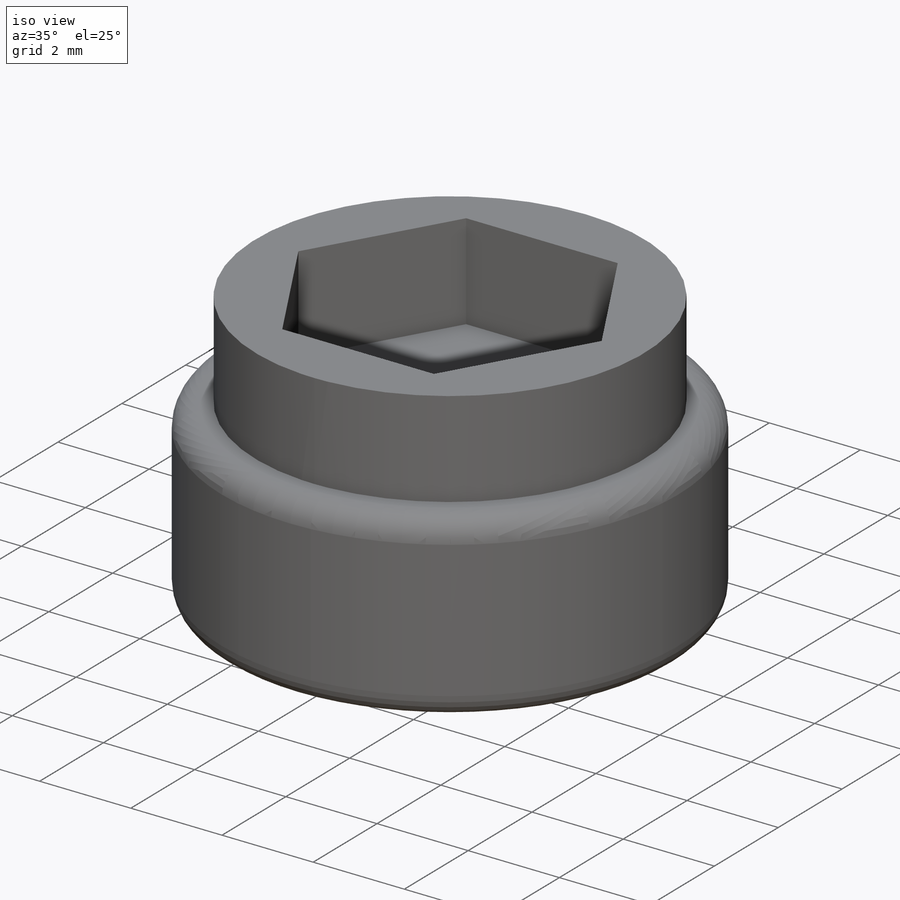
[diagram: iso view]
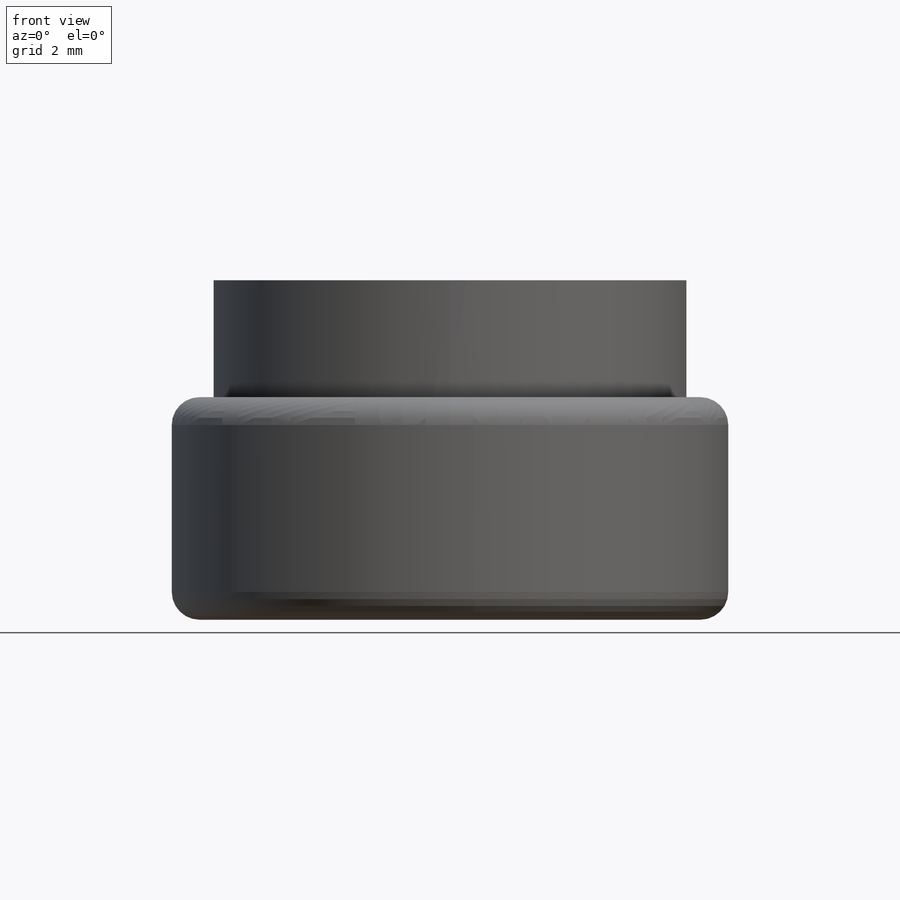
[diagram: front view]
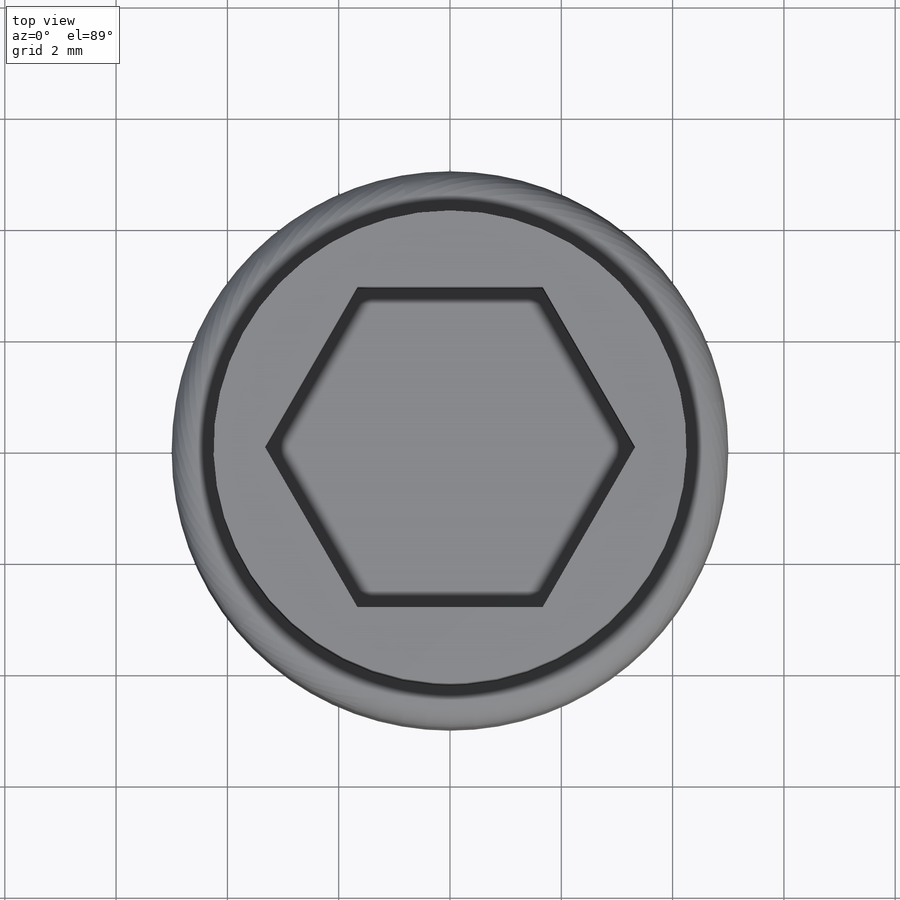
[diagram: top view]
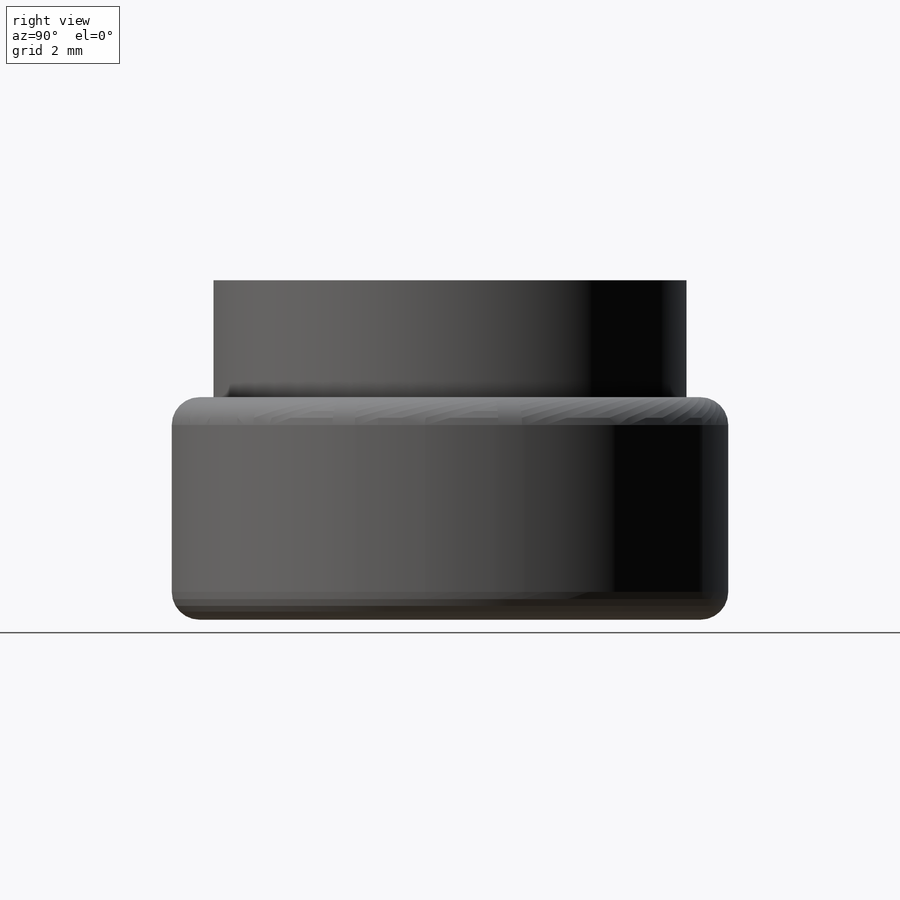
[diagram: right view]
SOLIDWORKS PART (.sldprt)
format: sldprt  version: not decoded by parser v0  size: 365,056 bytes
history: native  units: mm
features: sketch x13, extrude x9, cut_extrude x4, material x1, chamfer x1, fillet x1 (+13 scaffold rows collapsed)
feature tree (42):
  scaffold x13  (default folders/planes/origin — collapsed)
  material  "Material <not specified>"
  sketch  "Sketch1"
  extrude  "Boss-Extrude1"  Depth=1.75mm
  sketch  "Sketch2"
  extrude  "Boss-Extrude2"  Depth=0.5mm
  sketch  "Sketch3"
  extrude  "Boss-Extrude5"  Depth=3.5mm
  sketch  "Sketch4"  dims[D1=4.0mm]
  extrude  "Boss-Extrude7"  Depth=2mm
  sketch  "Sketch11"
  cut_extrude  "Cut-Extrude3"  Depth=2mm
  sketch  "Sketch12"
  cut_extrude  "Cut-Extrude4"  Depth=3mm
  sketch  "Sketch16"  dims[D1=2.2mm]
  extrude  "Boss-Extrude8"  Depth=2.5mm
  chamfer  "Chamfer1"  Distance=0.5mm Angle=30deg
  sketch  "Sketch17"
  extrude  "Boss-Extrude9"  Depth=3mm
  sketch  "Sketch18"
  cut_extrude  "Cut-Extrude8"  Depth=2.25mm
  sketch  "Sketch20"  dims[D1=~5.038659mm]
  extrude  "Boss-Extrude10"  Depth=2mm
  sketch  "Sketch21"
  extrude  "Boss-Extrude11"  Depth=2mm
  fillet  "Fillet1"  Radius=0.5mm
  sketch  "Sketch25"
  cut_extrude  "Cut-Extrude9"  Depth=10mm
  sketch  "Sketch26"  dims[D1=8.5mm D2=2.88mm]
  extrude  "Boss-Extrude12"  Depth=2.1mm
decode coverage: 19 of 28 modeling features carry decoded parameters
note: ~ marks probable driven/reference dimensions
note: suppression state not decoded; provenance and decode notes live in map.json
